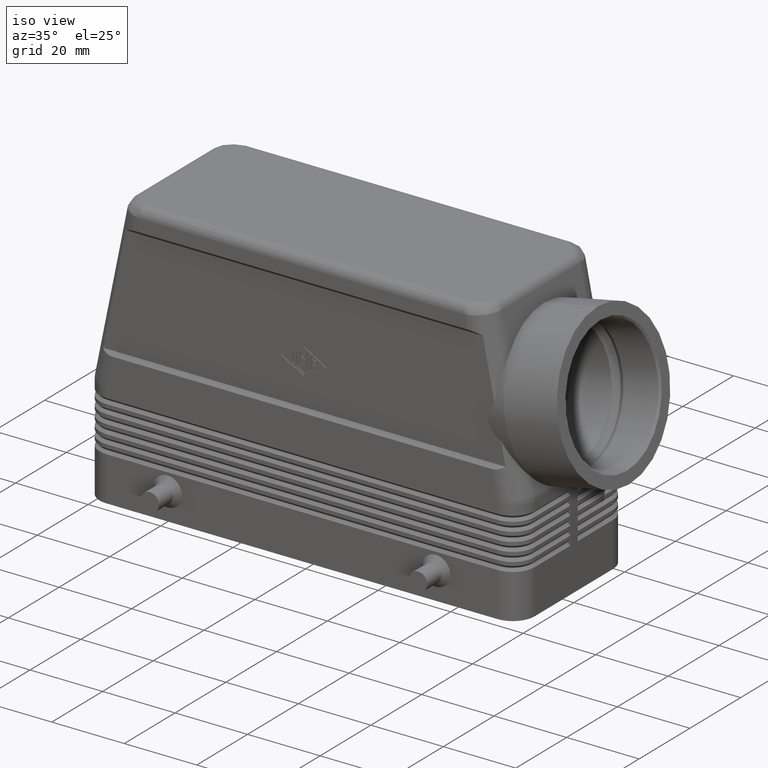
[diagram: clean part render]
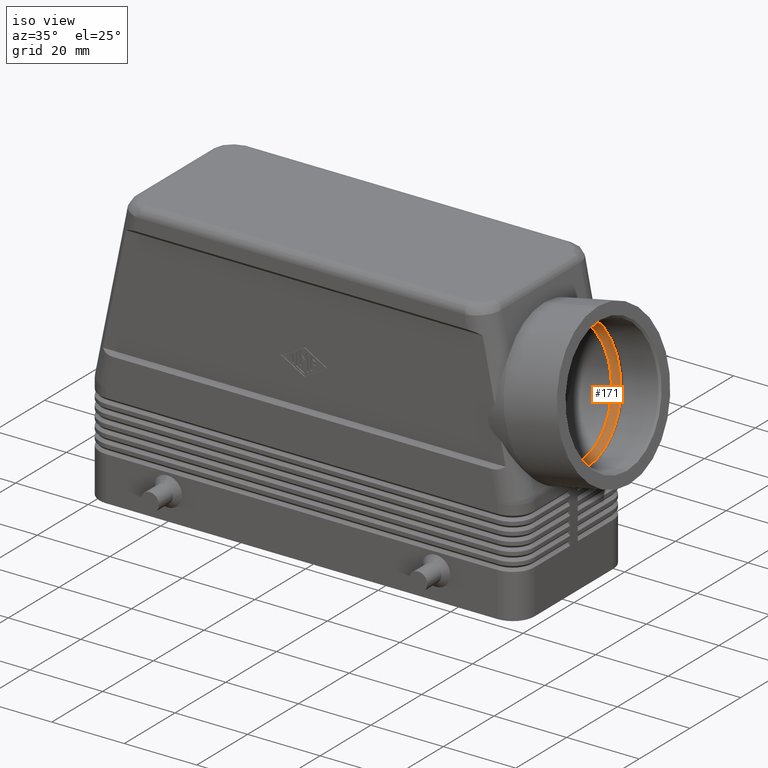
[diagram: same view with one face highlighted and labeled with its STEP entity id]
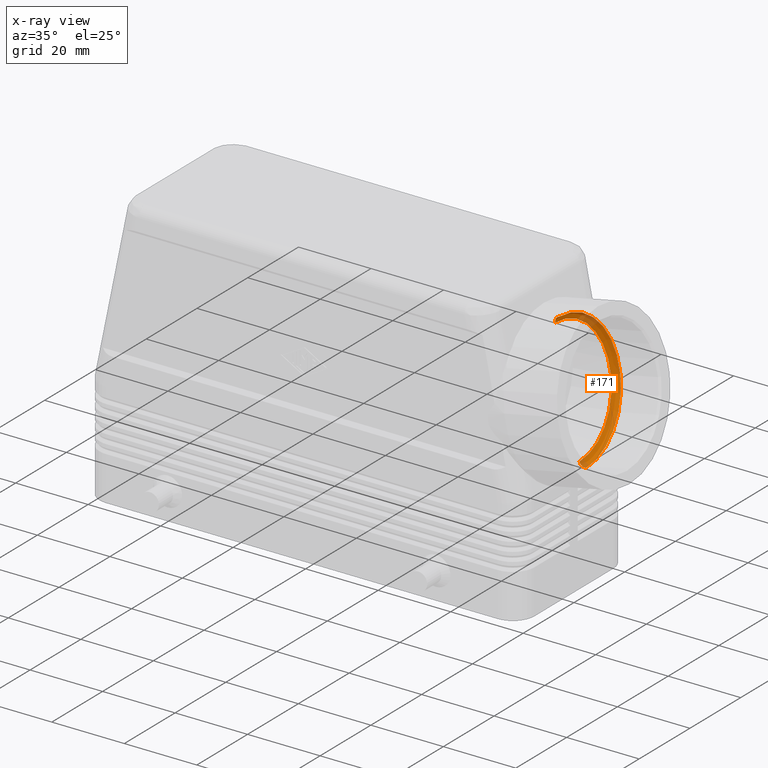
[diagram: x-ray of the same camera — body ghosted, the highlighted face saturated]
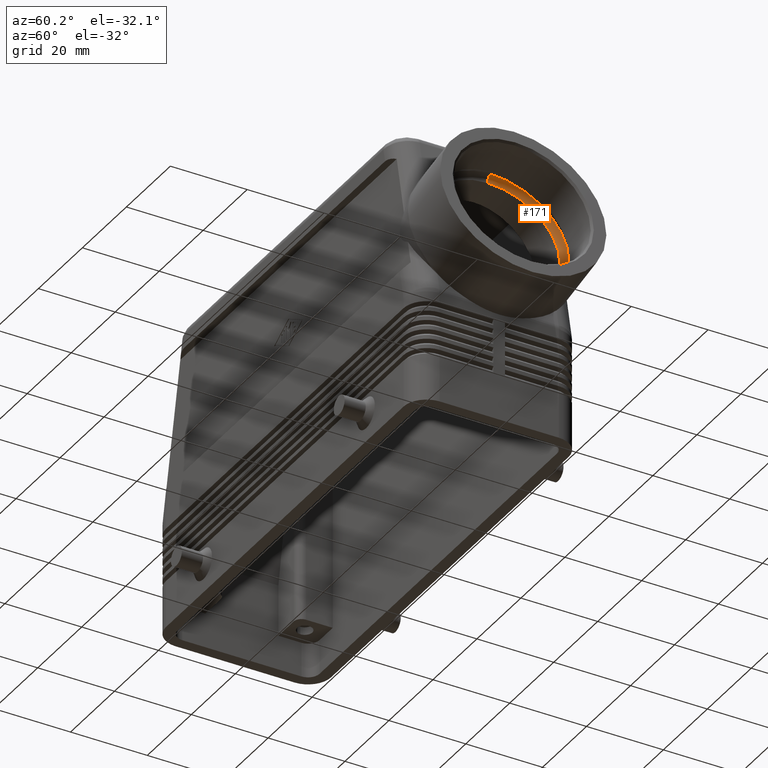
[diagram: same view with one face highlighted and labeled with its STEP entity id]
A machine part, iso view. The second image highlights one B-rep face of the part: STEP entity #171.
The next image is the same camera in x-ray: the body ghosted, the highlighted face saturated — about 10% of this face is hidden behind the body in this view.
A second angle (auxiliary view) of the same face is appended — the face is thin or edge-on in the first view.
In plain terms, the highlighted face is a freeform B-spline surface patch.
Its self-contained STEP definition (entity closure, byte-faithful):
#44=CARTESIAN_POINT('',(62.716607700068586,-1.866300E-015,34.871174242355139));
#45=CARTESIAN_POINT('',(64.186250570456380,-1.866300E-015,35.171423861036516));
#46=CARTESIAN_POINT('',(64.486500189137757,-2.049991E-015,33.701780990648714));
#47=CARTESIAN_POINT('',(64.786749807819135,-2.233682E-015,32.232138120260913));
#48=CARTESIAN_POINT('',(63.317106937431340,-2.233682E-015,31.931888501579540));
#49=CARTESIAN_POINT('',(61.847464067043546,-2.233682E-015,31.631638882898159));
#50=CARTESIAN_POINT('',(61.547214448362169,-2.049991E-015,33.101281753285960));
#51=CARTESIAN_POINT('',(61.246964829680792,-1.866300E-015,34.570924623673761));
#52=CARTESIAN_POINT('',(62.716607700068586,-1.866300E-015,34.871174242355139));
#53=CARTESIAN_POINT('',(62.716607700068579,-15.240000000000007,34.871174242355139));
#54=CARTESIAN_POINT('',(64.186250570456380,-15.240000000000009,35.171423861036516));
#55=CARTESIAN_POINT('',(64.486500189137757,-16.740000000000013,33.701780990648714));
#56=CARTESIAN_POINT('',(64.786749807819135,-18.240000000000016,32.232138120260913));
#57=CARTESIAN_POINT('',(63.317106937431340,-18.240000000000013,31.931888501579543));
#58=CARTESIAN_POINT('',(61.847464067043546,-18.240000000000013,31.631638882898166));
#59=CARTESIAN_POINT('',(61.547214448362176,-16.740000000000016,33.101281753285960));
#60=CARTESIAN_POINT('',(61.246964829680792,-15.240000000000009,34.570924623673761));
#61=CARTESIAN_POINT('',(62.716607700068579,-15.240000000000007,34.871174242355139));
#62=CARTESIAN_POINT('',(59.666071574265779,-15.240000000000011,49.802745805495178));
#63=CARTESIAN_POINT('',(61.135714444653573,-15.240000000000013,50.102995424176562));
#64=CARTESIAN_POINT('',(61.135714444653573,-16.740000000000013,50.102995424176555));
#65=CARTESIAN_POINT('',(61.135714444653566,-18.240000000000016,50.102995424176562));
#66=CARTESIAN_POINT('',(59.666071574265771,-18.240000000000013,49.802745805495178));
#67=CARTESIAN_POINT('',(58.196428703877977,-18.240000000000013,49.502496186813801));
#68=CARTESIAN_POINT('',(58.196428703877977,-16.740000000000016,49.502496186813801));
#69=CARTESIAN_POINT('',(58.196428703877977,-15.240000000000011,49.502496186813801));
#70=CARTESIAN_POINT('',(59.666071574265779,-15.240000000000011,49.802745805495178));
#71=CARTESIAN_POINT('',(56.615535448462971,-15.240000000000006,64.734317368635217));
#72=CARTESIAN_POINT('',(58.085178318850765,-15.240000000000006,65.034566987316595));
#73=CARTESIAN_POINT('',(57.784928700169381,-16.740000000000006,66.504209857704396));
#74=CARTESIAN_POINT('',(57.484679081487997,-18.240000000000009,67.973852728092197));
#75=CARTESIAN_POINT('',(56.015036211100195,-18.240000000000006,67.673603109410806));
#76=CARTESIAN_POINT('',(54.545393340712408,-18.240000000000006,67.373353490729443));
#77=CARTESIAN_POINT('',(54.845642959393793,-16.740000000000009,65.903710620341641));
#78=CARTESIAN_POINT('',(55.145892578075177,-15.240000000000006,64.434067749953840));
#79=CARTESIAN_POINT('',(56.615535448462971,-15.240000000000006,64.734317368635217));
#80=CARTESIAN_POINT('',(56.615535448462971,1.866300E-015,64.734317368635217));
#81=CARTESIAN_POINT('',(58.085178318850765,1.866300E-015,65.034566987316595));
#82=CARTESIAN_POINT('',(57.784928700169388,2.049991E-015,66.504209857704396));
#83=CARTESIAN_POINT('',(57.484679081488004,2.233682E-015,67.973852728092197));
#84=CARTESIAN_POINT('',(56.015036211100202,2.233682E-015,67.673603109410820));
#85=CARTESIAN_POINT('',(54.545393340712408,2.233682E-015,67.373353490729443));
#86=CARTESIAN_POINT('',(54.845642959393786,2.049991E-015,65.903710620341641));
#87=CARTESIAN_POINT('',(55.145892578075177,1.866300E-015,64.434067749953840));
#88=CARTESIAN_POINT('',(56.615535448462971,1.866300E-015,64.734317368635217));
#89=CARTESIAN_POINT('',(56.615535448462971,15.240000000000007,64.734317368635217));
#90=CARTESIAN_POINT('',(58.085178318850765,15.240000000000009,65.034566987316595));
#91=CARTESIAN_POINT('',(57.784928700169381,16.740000000000013,66.504209857704396));
#92=CARTESIAN_POINT('',(57.484679081487997,18.240000000000016,67.973852728092197));
#93=CARTESIAN_POINT('',(56.015036211100195,18.240000000000013,67.673603109410806));
#94=CARTESIAN_POINT('',(54.545393340712408,18.240000000000013,67.373353490729443));
#95=CARTESIAN_POINT('',(54.845642959393793,16.740000000000016,65.903710620341641));
#96=CARTESIAN_POINT('',(55.145892578075177,15.240000000000009,64.434067749953840));
#97=CARTESIAN_POINT('',(56.615535448462971,15.240000000000007,64.734317368635217));
#98=CARTESIAN_POINT('',(59.666071574265779,15.240000000000011,49.802745805495178));
#99=CARTESIAN_POINT('',(61.135714444653573,15.240000000000013,50.102995424176562));
#100=CARTESIAN_POINT('',(61.135714444653573,16.740000000000013,50.102995424176555));
#101=CARTESIAN_POINT('',(61.135714444653566,18.240000000000016,50.102995424176562));
#102=CARTESIAN_POINT('',(59.666071574265771,18.240000000000013,49.802745805495178));
#103=CARTESIAN_POINT('',(58.196428703877977,18.240000000000013,49.502496186813801));
#104=CARTESIAN_POINT('',(58.196428703877977,16.740000000000016,49.502496186813801));
#105=CARTESIAN_POINT('',(58.196428703877977,15.240000000000011,49.502496186813801));
#106=CARTESIAN_POINT('',(59.666071574265779,15.240000000000011,49.802745805495178));
#107=CARTESIAN_POINT('',(62.716607700068579,15.240000000000006,34.871174242355139));
#108=CARTESIAN_POINT('',(64.186250570456380,15.240000000000006,35.171423861036516));
#109=CARTESIAN_POINT('',(64.486500189137757,16.740000000000006,33.701780990648714));
#110=CARTESIAN_POINT('',(64.786749807819135,18.240000000000009,32.232138120260913));
#111=CARTESIAN_POINT('',(63.317106937431340,18.240000000000006,31.931888501579543));
#112=CARTESIAN_POINT('',(61.847464067043546,18.240000000000006,31.631638882898166));
#113=CARTESIAN_POINT('',(61.547214448362176,16.740000000000009,33.101281753285960));
#114=CARTESIAN_POINT('',(61.246964829680792,15.240000000000006,34.570924623673761));
#115=CARTESIAN_POINT('',(62.716607700068579,15.240000000000006,34.871174242355139));
#116=CARTESIAN_POINT('',(62.716607700068586,-1.866300E-015,34.871174242355139));
#117=CARTESIAN_POINT('',(64.186250570456380,-1.866300E-015,35.171423861036516));
#118=CARTESIAN_POINT('',(64.486500189137757,-2.049991E-015,33.701780990648714));
#119=CARTESIAN_POINT('',(64.786749807819135,-2.233682E-015,32.232138120260913));
#120=CARTESIAN_POINT('',(63.317106937431340,-2.233682E-015,31.931888501579540));
#121=CARTESIAN_POINT('',(61.847464067043546,-2.233682E-015,31.631638882898159));
#122=CARTESIAN_POINT('',(61.547214448362169,-2.049991E-015,33.101281753285960));
#123=CARTESIAN_POINT('',(61.246964829680792,-1.866300E-015,34.570924623673761));
#124=CARTESIAN_POINT('',(62.716607700068586,-1.866300E-015,34.871174242355139));
#132=(BOUNDED_SURFACE()B_SPLINE_SURFACE(2,2,((#44,#53,#62,#71,#80,#89,#98,#107,#116),(#45,#54,#63,#72,#81,#90,#99,#108,#117),(#46,#55,#64,#73,#82,#91,#100,#109,#118),(#47,#56,#65,#74,#83,#92,#101,#110,#119),(#48,#57,#66,#75,#84,#93,#102,#111,#120),(#49,#58,#67,#76,#85,#94,#103,#112,#121),(#50,#59,#68,#77,#86,#95,#104,#113,#122),(#51,#60,#69,#78,#87,#96,#105,#114,#123),(#52,#61,#70,#79,#88,#97,#106,#115,#124)),.UNSPECIFIED.,.T.,.T.,.U.)B_SPLINE_SURFACE_WITH_KNOTS((3,2,2,2,3),(3,2,2,2,3),(-3.141592653589793,-1.570796326794897,0.0,1.570796326794897,3.141592653589793),(0.0,1.570796326794897,3.141592653589793,4.712388980384690,6.283185307179586),.UNSPECIFIED.)GEOMETRIC_REPRESENTATION_ITEM()RATIONAL_B_SPLINE_SURFACE(((1.0,0.707106781186548,1.0,0.707106781186548,1.0,0.707106781186548,1.0,0.707106781186548,1.0),(0.707106781186544,0.499999999999998,0.707106781186544,0.499999999999998,0.707106781186544,0.499999999999998,0.707106781186544,0.499999999999998,0.707106781186544),(1.0,0.707106781186548,1.0,0.707106781186548,1.0,0.707106781186548,1.0,0.707106781186548,1.0),(0.707106781186550,0.500000000000002,0.707106781186550,0.500000000000002,0.707106781186550,0.500000000000002,0.707106781186550,0.500000000000002,0.707106781186550),(1.0,0.707106781186548,1.0,0.707106781186548,1.0,0.707106781186548,1.0,0.707106781186548,1.0),(0.707106781186550,0.500000000000002,0.707106781186550,0.500000000000002,0.707106781186550,0.500000000000002,0.707106781186550,0.500000000000002,0.707106781186550),(1.0,0.707106781186548,1.0,0.707106781186548,1.0,0.707106781186548,1.0,0.707106781186548,1.0),(0.707106781186548,0.500000000000000,0.707106781186548,0.500000000000000,0.707106781186548,0.500000000000000,0.707106781186548,0.500000000000000,0.707106781186548),(1.0,0.707106781186548,1.0,0.707106781186548,1.0,0.707106781186548,1.0,0.707106781186548,1.0)))REPRESENTATION_ITEM('')SURFACE());
#133=CARTESIAN_POINT('',(56.015036211100210,-2.095612E-015,67.673603109410820));
#134=VERTEX_POINT('',#133);
#135=CARTESIAN_POINT('',(63.317106937431333,2.098118E-015,31.931888501579540));
#136=VERTEX_POINT('',#135);
#137=CARTESIAN_POINT('',(59.666071574265771,0.0,49.802745805495178));
#138=DIRECTION('',(-0.979761913591865,0.0,-0.200166412454252));
#139=DIRECTION('',(-0.200166412454252,0.0,0.979761913591865));
#140=AXIS2_PLACEMENT_3D('',#137,#138,#139);
#141=CIRCLE('',#140,18.240000000000013);
#142=EDGE_CURVE('',#134,#136,#141,.T.);
#143=ORIENTED_EDGE('',*,*,#142,.F.);
#144=CARTESIAN_POINT('',(54.845642959393786,-2.049991E-015,65.903710620341627));
#145=VERTEX_POINT('',#144);
#146=CARTESIAN_POINT('',(56.315285829781587,-2.049991E-015,66.203960239023019));
#147=DIRECTION('',(2.451251E-017,-1.0,-1.199823E-016));
#148=DIRECTION('',(-0.200166412454252,-1.224606E-016,0.979761913591865));
#149=AXIS2_PLACEMENT_3D('',#146,#147,#148);
#150=CIRCLE('',#149,1.500000000000000);
#151=EDGE_CURVE('',#134,#145,#150,.T.);
#152=ORIENTED_EDGE('',*,*,#151,.T.);
#153=CARTESIAN_POINT('',(61.547214448362162,0.0,33.101281753285960));
#154=VERTEX_POINT('',#153);
#155=CARTESIAN_POINT('',(58.196428703877970,0.0,49.502496186813794));
#156=DIRECTION('',(-0.979761913591865,0.0,-0.200166412454252));
#157=DIRECTION('',(0.200166412454252,0.0,-0.979761913591865));
#158=AXIS2_PLACEMENT_3D('',#155,#156,#157);
#159=CIRCLE('',#158,16.740000000000006);
#160=EDGE_CURVE('',#145,#154,#159,.T.);
#161=ORIENTED_EDGE('',*,*,#160,.T.);
#162=CARTESIAN_POINT('',(63.016857318749956,2.049991E-015,33.401531371967337));
#163=DIRECTION('',(2.451251E-017,-1.0,-1.199823E-016));
#164=DIRECTION('',(0.200166412454252,1.224606E-016,-0.979761913591865));
#165=AXIS2_PLACEMENT_3D('',#162,#163,#164);
#166=CIRCLE('',#165,1.500000000000000);
#167=EDGE_CURVE('',#154,#136,#166,.T.);
#168=ORIENTED_EDGE('',*,*,#167,.T.);
#169=EDGE_LOOP('',(#143,#152,#161,#168));
#170=FACE_OUTER_BOUND('',#169,.T.);
#171=ADVANCED_FACE('',(#170),#132,.T.);